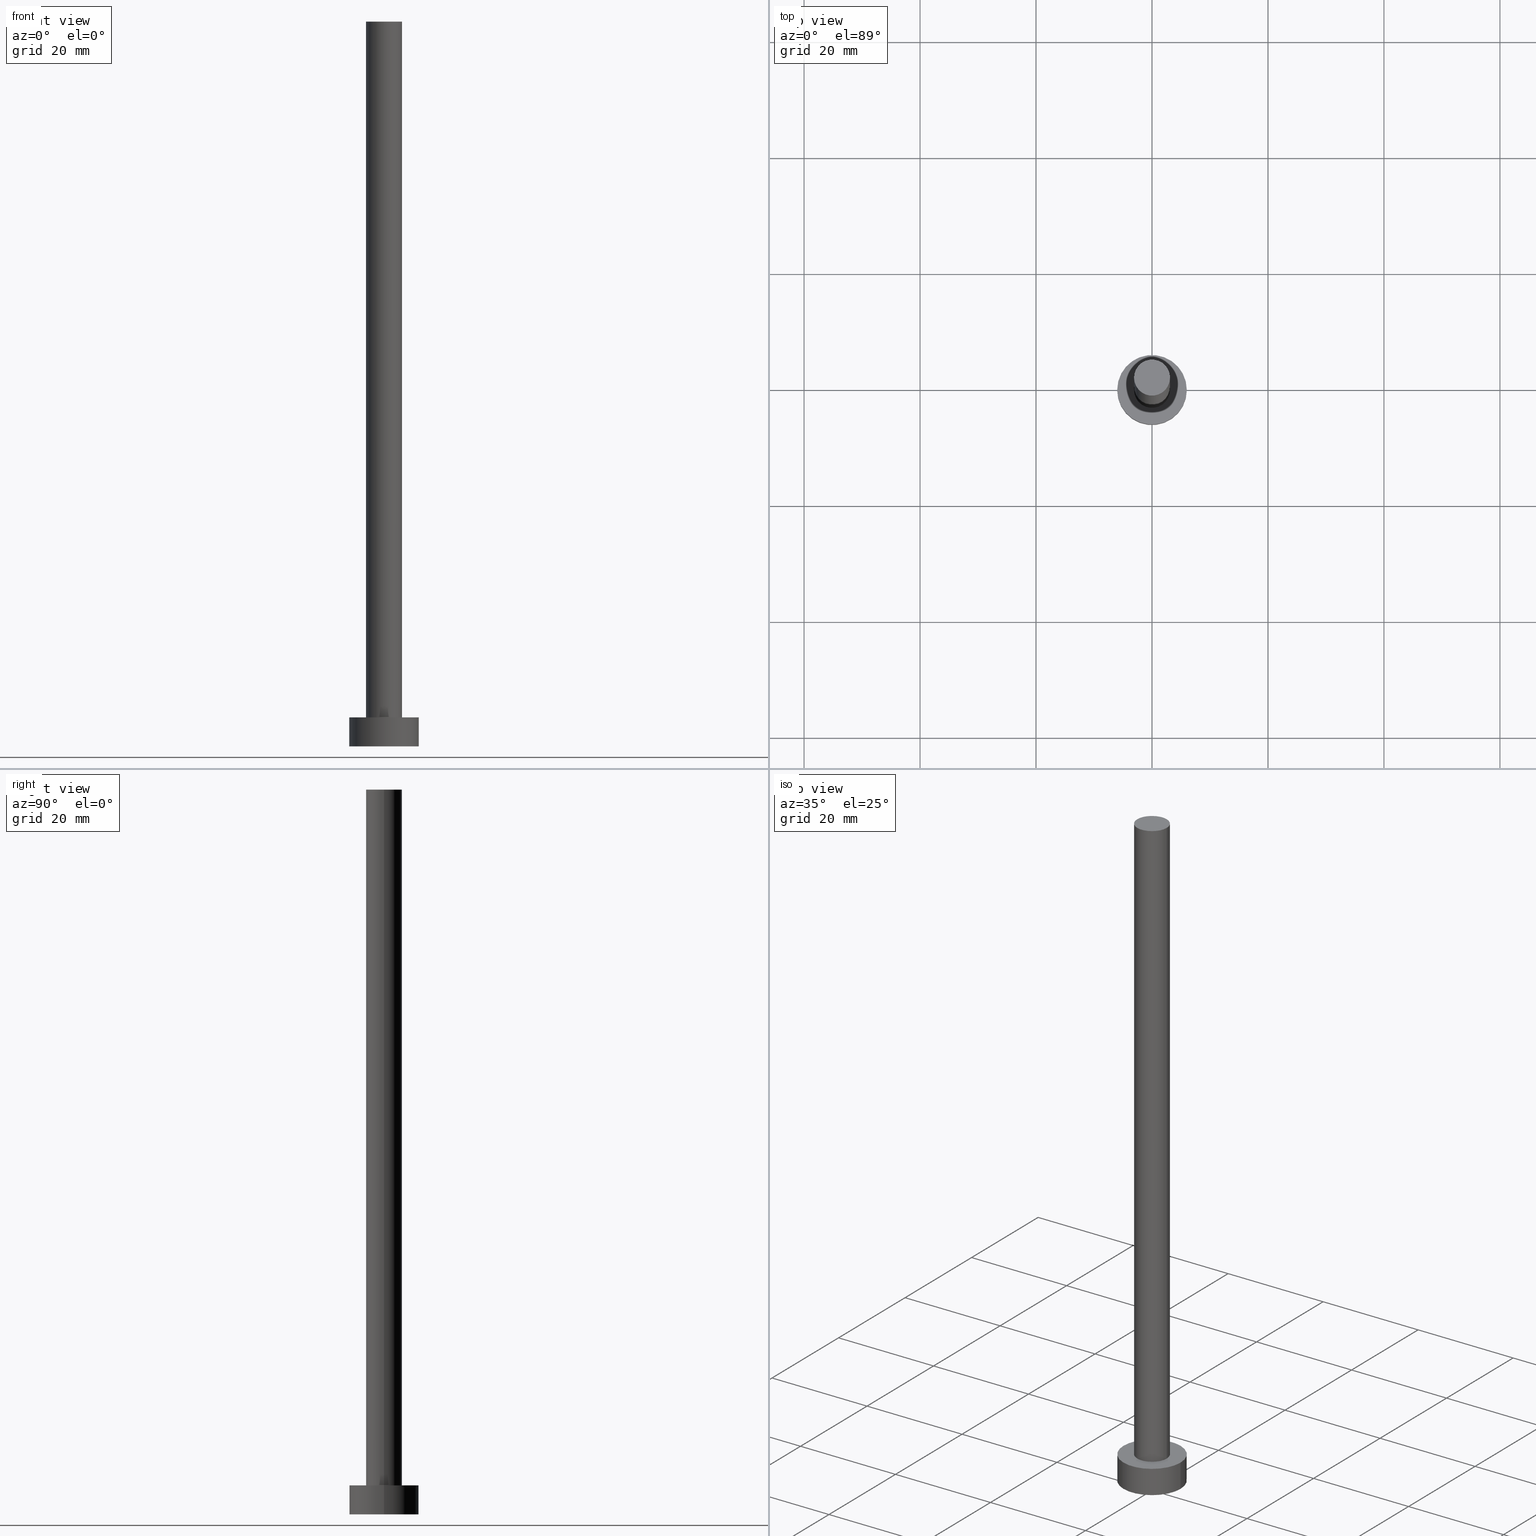
[diagram: canonical four-view strip — front | top / right | iso, engineering-drawing reading convention]
A machine part, canonical four-view strip (front | top / right | iso — engineering-drawing reading convention). The complete STEP part file that produces these views, byte-faithful:
ISO-10303-21;
HEADER;
FILE_DESCRIPTION (( 'STEP AP203' ),
    '1' );
FILE_NAME ('cd59.STEP',
    '2023-02-13T15:20:59',
    ( '' ),
    ( '' ),
    'SwSTEP 2.0',
    'SolidWorks 2019',
    '' );
FILE_SCHEMA (( 'CONFIG_CONTROL_DESIGN' ));
ENDSEC;

DATA;
#1 = CARTESIAN_POINT ( 'NONE',  ( 6.000000000000000888, 7.347880794884120722E-16, 5.000000000000000000 ) ) ;
#2 = ADVANCED_FACE ( 'NONE', ( #131 ), #110, .T. ) ;
#3 = DIRECTION ( 'NONE',  ( 1.000000000000000000, 0.000000000000000000, 0.000000000000000000 ) ) ;
#4 = CARTESIAN_POINT ( 'NONE',  ( -3.100000000000000089, 0.000000000000000000, 125.0000000000000000 ) ) ;
#5 = DIRECTION ( 'NONE',  ( -0.000000000000000000, -0.000000000000000000, -1.000000000000000000 ) ) ;
#6 = APPLICATION_PROTOCOL_DEFINITION ( 'international standard', 'config_control_design', 1994, #84 ) ;
#7 = CYLINDRICAL_SURFACE ( 'NONE', #59, 6.000000000000000888 ) ;
#8 = ADVANCED_FACE ( 'NONE', ( #232, #240 ), #60, .T. ) ;
#9 = LOCAL_TIME ( 16, 20, 59.00000000000000000, #98 ) ;
#10 = CARTESIAN_POINT ( 'NONE',  ( 0.000000000000000000, 0.000000000000000000, 5.000000000000000000 ) ) ;
#11 = AXIS2_PLACEMENT_3D ( 'NONE', #147, #217, #44 ) ;
#12 = PRODUCT ( 'cd59', 'cd59', '', ( #51 ) ) ;
#13 = PERSON_AND_ORGANIZATION ( #149, #203 ) ;
#14 = ORIENTED_EDGE ( 'NONE', *, *, #157, .T. ) ;
#15 = DIRECTION ( 'NONE',  ( -0.000000000000000000, -0.000000000000000000, -1.000000000000000000 ) ) ;
#16 = AXIS2_PLACEMENT_3D ( 'NONE', #182, #145, #3 ) ;
#17 = CC_DESIGN_APPROVAL ( #198, ( #116 ) ) ;
#18 = COORDINATED_UNIVERSAL_TIME_OFFSET ( 1, 0, .AHEAD. ) ;
#19 = ADVANCED_FACE ( 'NONE', ( #202 ), #7, .T. ) ;
#20 = ORIENTED_EDGE ( 'NONE', *, *, #143, .T. ) ;
#21 = APPROVAL_DATE_TIME ( #135, #198 ) ;
#22 = EDGE_CURVE ( 'NONE', #152, #255, #236, .T. ) ;
#23 = APPROVAL ( #212, 'NEUR�EN�' ) ;
#24 = AXIS2_PLACEMENT_3D ( 'NONE', #29, #219, #64 ) ;
#25 = ORIENTED_EDGE ( 'NONE', *, *, #38, .F. ) ;
#26 = DIRECTION ( 'NONE',  ( 0.000000000000000000, 0.000000000000000000, 1.000000000000000000 ) ) ;
#27 =( NAMED_UNIT ( * ) PLANE_ANGLE_UNIT ( ) SI_UNIT ( $, .RADIAN. ) );
#28 = VERTEX_POINT ( 'NONE', #125 ) ;
#29 = CARTESIAN_POINT ( 'NONE',  ( 0.000000000000000000, 0.000000000000000000, 0.000000000000000000 ) ) ;
#30 = DIRECTION ( 'NONE',  ( -1.000000000000000000, 0.000000000000000000, 0.000000000000000000 ) ) ;
#31 = CARTESIAN_POINT ( 'NONE',  ( 0.000000000000000000, 0.000000000000000000, 125.0000000000000000 ) ) ;
#32 = CIRCLE ( 'NONE', #97, 3.100000000000000089 ) ;
#33 = APPROVAL_PERSON_ORGANIZATION ( #37, #82, #69 ) ;
#34 =( NAMED_UNIT ( * ) SI_UNIT ( $, .STERADIAN. ) SOLID_ANGLE_UNIT ( ) );
#35 = VECTOR ( 'NONE', #15, 1000.000000000000000 ) ;
#36 = ORIENTED_EDGE ( 'NONE', *, *, #78, .F. ) ;
#37 = PERSON_AND_ORGANIZATION ( #149, #203 ) ;
#38 = EDGE_CURVE ( 'NONE', #138, #28, #136, .T. ) ;
#39 = ADVANCED_FACE ( 'NONE', ( #165 ), #87, .T. ) ;
#40 = DIRECTION ( 'NONE',  ( 1.000000000000000000, 0.000000000000000000, -0.000000000000000000 ) ) ;
#41 = EDGE_LOOP ( 'NONE', ( #71, #206, #228, #121 ) ) ;
#42 = ORIENTED_EDGE ( 'NONE', *, *, #157, .F. ) ;
#43 = DATE_TIME_ROLE ( 'classification_date' ) ;
#44 = DIRECTION ( 'NONE',  ( 1.000000000000000000, 0.000000000000000000, 0.000000000000000000 ) ) ;
#45 = DIRECTION ( 'NONE',  ( -0.000000000000000000, -0.000000000000000000, -1.000000000000000000 ) ) ;
#46 = CARTESIAN_POINT ( 'NONE',  ( 3.100000000000000089, 3.796405077356794918E-16, 5.000000000000000000 ) ) ;
#47 = DIRECTION ( 'NONE',  ( 1.000000000000000000, 0.000000000000000000, 0.000000000000000000 ) ) ;
#48 = VECTOR ( 'NONE', #63, 1000.000000000000000 ) ;
#49 = LOCAL_TIME ( 16, 20, 59.00000000000000000, #119 ) ;
#50 = CARTESIAN_POINT ( 'NONE',  ( 0.000000000000000000, 0.000000000000000000, 5.000000000000000000 ) ) ;
#51 = MECHANICAL_CONTEXT ( 'NONE', #72, 'mechanical' ) ;
#52 = CYLINDRICAL_SURFACE ( 'NONE', #127, 6.000000000000000888 ) ;
#53 = APPROVAL_ROLE ( '' ) ;
#54 = EDGE_CURVE ( 'NONE', #183, #162, #201, .T. ) ;
#55 = COORDINATED_UNIVERSAL_TIME_OFFSET ( 1, 0, .AHEAD. ) ;
#56 = ORIENTED_EDGE ( 'NONE', *, *, #88, .F. ) ;
#57 = SECURITY_CLASSIFICATION_LEVEL ( 'unclassified' ) ;
#58 = AXIS2_PLACEMENT_3D ( 'NONE', #199, #126, #47 ) ;
#59 = AXIS2_PLACEMENT_3D ( 'NONE', #220, #234, #123 ) ;
#60 = PLANE ( 'NONE',  #101 ) ;
#61 = CIRCLE ( 'NONE', #148, 6.000000000000000888 ) ;
#62 = ORIENTED_EDGE ( 'NONE', *, *, #91, .T. ) ;
#63 = DIRECTION ( 'NONE',  ( -0.000000000000000000, -0.000000000000000000, -1.000000000000000000 ) ) ;
#64 = DIRECTION ( 'NONE',  ( 1.000000000000000000, 0.000000000000000000, 0.000000000000000000 ) ) ;
#65 = CARTESIAN_POINT ( 'NONE',  ( 0.000000000000000000, 0.000000000000000000, 5.000000000000000000 ) ) ;
#66 = DIRECTION ( 'NONE',  ( 0.000000000000000000, 0.000000000000000000, 1.000000000000000000 ) ) ;
#67 = DIRECTION ( 'NONE',  ( -0.000000000000000000, -0.000000000000000000, -1.000000000000000000 ) ) ;
#68 = APPROVAL_PERSON_ORGANIZATION ( #167, #198, #53 ) ;
#69 = APPROVAL_ROLE ( '' ) ;
#70 = PRODUCT_DEFINITION_SHAPE ( 'NONE', 'NONE',  #116 ) ;
#71 = ORIENTED_EDGE ( 'NONE', *, *, #22, .F. ) ;
#72 = APPLICATION_CONTEXT ( 'configuration controlled 3d designs of mechanical parts and assemblies' ) ;
#73 = FACE_OUTER_BOUND ( 'NONE', #41, .T. ) ;
#74 = PERSON_AND_ORGANIZATION_ROLE ( 'classification_officer' ) ;
#75 = PERSON_AND_ORGANIZATION_ROLE ( 'creator' ) ;
#76 = SHAPE_DEFINITION_REPRESENTATION ( #70, #207 ) ;
#77 = CIRCLE ( 'NONE', #221, 3.100000000000000089 ) ;
#78 = EDGE_CURVE ( 'NONE', #194, #118, #32, .T. ) ;
#79 = CC_DESIGN_APPROVAL ( #82, ( #218 ) ) ;
#80 = DIRECTION ( 'NONE',  ( 0.000000000000000000, 0.000000000000000000, 1.000000000000000000 ) ) ;
#81 = EDGE_LOOP ( 'NONE', ( #56, #103 ) ) ;
#82 = APPROVAL ( #94, 'NEUR�EN�' ) ;
#83 = CARTESIAN_POINT ( 'NONE',  ( -6.000000000000000888, 0.000000000000000000, 5.000000000000000000 ) ) ;
#84 = APPLICATION_CONTEXT ( 'configuration controlled 3d designs of mechanical parts and assemblies' ) ;
#85 = ORIENTED_EDGE ( 'NONE', *, *, #129, .T. ) ;
#86 = MANIFOLD_SOLID_BREP ( 'P�idat vysunut�m3', #141 ) ;
#87 = PLANE ( 'NONE',  #252 ) ;
#88 = EDGE_CURVE ( 'NONE', #162, #183, #90, .T. ) ;
#89 = LINE ( 'NONE', #242, #205 ) ;
#90 = CIRCLE ( 'NONE', #11, 6.000000000000000888 ) ;
#91 = EDGE_CURVE ( 'NONE', #28, #183, #144, .T. ) ;
#92 = DATE_TIME_ROLE ( 'creation_date' ) ;
#93 = DIRECTION ( 'NONE',  ( 0.000000000000000000, 0.000000000000000000, 1.000000000000000000 ) ) ;
#94 = APPROVAL_STATUS ( 'not_yet_approved' ) ;
#95 = EDGE_LOOP ( 'NONE', ( #249, #213, #85, #204 ) ) ;
#96 = ORIENTED_EDGE ( 'NONE', *, *, #22, .T. ) ;
#97 = AXIS2_PLACEMENT_3D ( 'NONE', #50, #105, #166 ) ;
#98 = COORDINATED_UNIVERSAL_TIME_OFFSET ( 1, 0, .AHEAD. ) ;
#99 = CALENDAR_DATE ( 2023, 13, 2 ) ;
#100 =( LENGTH_UNIT ( ) NAMED_UNIT ( * ) SI_UNIT ( .MILLI., .METRE. ) );
#101 = AXIS2_PLACEMENT_3D ( 'NONE', #65, #80, #186 ) ;
#102 = CC_DESIGN_PERSON_AND_ORGANIZATION_ASSIGNMENT ( #250, #210, ( #115 ) ) ;
#103 = ORIENTED_EDGE ( 'NONE', *, *, #54, .F. ) ;
#104 = EDGE_LOOP ( 'NONE', ( #158, #96 ) ) ;
#105 = DIRECTION ( 'NONE',  ( 0.000000000000000000, 0.000000000000000000, 1.000000000000000000 ) ) ;
#106 = LINE ( 'NONE', #4, #48 ) ;
#107 = DIRECTION ( 'NONE',  ( 1.000000000000000000, 0.000000000000000000, -0.000000000000000000 ) ) ;
#108 = PERSON_AND_ORGANIZATION ( #149, #203 ) ;
#109 = EDGE_CURVE ( 'NONE', #255, #152, #77, .T. ) ;
#110 = CYLINDRICAL_SURFACE ( 'NONE', #229, 3.100000000000000089 ) ;
#111 = DIRECTION ( 'NONE',  ( -0.000000000000000000, -0.000000000000000000, -1.000000000000000000 ) ) ;
#112 = DIRECTION ( 'NONE',  ( 1.000000000000000000, 0.000000000000000000, 0.000000000000000000 ) ) ;
#113 = ORIENTED_EDGE ( 'NONE', *, *, #114, .F. ) ;
#114 = EDGE_CURVE ( 'NONE', #118, #194, #128, .T. ) ;
#115 = PRODUCT_DEFINITION_FORMATION_WITH_SPECIFIED_SOURCE ( 'LIBOVOLN�', '', #12, .NOT_KNOWN. ) ;
#116 = PRODUCT_DEFINITION ( 'NEZN�M�', '', #115, #142 ) ;
#117 = CALENDAR_DATE ( 2023, 13, 2 ) ;
#118 = VERTEX_POINT ( 'NONE', #46 ) ;
#119 = COORDINATED_UNIVERSAL_TIME_OFFSET ( 1, 0, .AHEAD. ) ;
#120 = CALENDAR_DATE ( 2023, 13, 2 ) ;
#121 = ORIENTED_EDGE ( 'NONE', *, *, #129, .F. ) ;
#122 = LOCAL_TIME ( 16, 20, 59.00000000000000000, #215 ) ;
#123 = DIRECTION ( 'NONE',  ( -1.000000000000000000, 0.000000000000000000, 0.000000000000000000 ) ) ;
#124 = CARTESIAN_POINT ( 'NONE',  ( 0.000000000000000000, 0.000000000000000000, 125.0000000000000000 ) ) ;
#125 = CARTESIAN_POINT ( 'NONE',  ( 6.000000000000000888, 7.347880794884120722E-16, 5.000000000000000000 ) ) ;
#126 = DIRECTION ( 'NONE',  ( 0.000000000000000000, 0.000000000000000000, 1.000000000000000000 ) ) ;
#127 = AXIS2_PLACEMENT_3D ( 'NONE', #173, #245, #168 ) ;
#128 = CIRCLE ( 'NONE', #16, 3.100000000000000089 ) ;
#129 = EDGE_CURVE ( 'NONE', #255, #194, #106, .T. ) ;
#130 = AXIS2_PLACEMENT_3D ( 'NONE', #170, #66, #235 ) ;
#131 = FACE_OUTER_BOUND ( 'NONE', #95, .T. ) ;
#132 = CYLINDRICAL_SURFACE ( 'NONE', #223, 3.100000000000000089 ) ;
#133 = CC_DESIGN_PERSON_AND_ORGANIZATION_ASSIGNMENT ( #140, #74, ( #218 ) ) ;
#134 = FACE_OUTER_BOUND ( 'NONE', #254, .T. ) ;
#135 = DATE_AND_TIME ( #120, #122 ) ;
#136 = CIRCLE ( 'NONE', #193, 6.000000000000000888 ) ;
#137 = CC_DESIGN_DATE_AND_TIME_ASSIGNMENT ( #153, #92, ( #116 ) ) ;
#138 = VERTEX_POINT ( 'NONE', #83 ) ;
#139 = CC_DESIGN_PERSON_AND_ORGANIZATION_ASSIGNMENT ( #13, #75, ( #116 ) ) ;
#140 = PERSON_AND_ORGANIZATION ( #149, #203 ) ;
#141 = CLOSED_SHELL ( 'NONE', ( #230, #19, #216, #8, #169, #2, #39 ) ) ;
#142 = DESIGN_CONTEXT ( 'detailed design', #84, 'design' ) ;
#143 = EDGE_CURVE ( 'NONE', #138, #162, #146, .T. ) ;
#144 = LINE ( 'NONE', #1, #189 ) ;
#145 = DIRECTION ( 'NONE',  ( 0.000000000000000000, 0.000000000000000000, 1.000000000000000000 ) ) ;
#146 = LINE ( 'NONE', #184, #35 ) ;
#147 = CARTESIAN_POINT ( 'NONE',  ( 0.000000000000000000, 0.000000000000000000, 0.000000000000000000 ) ) ;
#148 = AXIS2_PLACEMENT_3D ( 'NONE', #10, #226, #112 ) ;
#149 = PERSON ( 'NEUR�EN�', 'NEUR�EN�', 'NEUR�EN�', ('NEUR�EN�'), ('NEUR�EN�'), ('NEUR�EN�') ) ;
#150 = CARTESIAN_POINT ( 'NONE',  ( -3.100000000000000089, 0.000000000000000000, 5.000000000000000000 ) ) ;
#151 = CC_DESIGN_PERSON_AND_ORGANIZATION_ASSIGNMENT ( #108, #185, ( #12 ) ) ;
#152 = VERTEX_POINT ( 'NONE', #243 ) ;
#153 = DATE_AND_TIME ( #117, #159 ) ;
#154 = PRODUCT_RELATED_PRODUCT_CATEGORY ( 'detail', '', ( #12 ) ) ;
#155 = CALENDAR_DATE ( 2023, 13, 2 ) ;
#156 = CC_DESIGN_PERSON_AND_ORGANIZATION_ASSIGNMENT ( #171, #244, ( #115 ) ) ;
#157 = EDGE_CURVE ( 'NONE', #28, #138, #61, .T. ) ;
#158 = ORIENTED_EDGE ( 'NONE', *, *, #109, .T. ) ;
#159 = LOCAL_TIME ( 16, 20, 59.00000000000000000, #55 ) ;
#160 = ORIENTED_EDGE ( 'NONE', *, *, #91, .F. ) ;
#161 = ORIENTED_EDGE ( 'NONE', *, *, #88, .T. ) ;
#162 = VERTEX_POINT ( 'NONE', #209 ) ;
#163 = EDGE_LOOP ( 'NONE', ( #36, #113 ) ) ;
#164 = APPLICATION_PROTOCOL_DEFINITION ( 'international standard', 'config_control_design', 1994, #72 ) ;
#165 = FACE_OUTER_BOUND ( 'NONE', #104, .T. ) ;
#166 = DIRECTION ( 'NONE',  ( 1.000000000000000000, 0.000000000000000000, 0.000000000000000000 ) ) ;
#167 = PERSON_AND_ORGANIZATION ( #149, #203 ) ;
#168 = DIRECTION ( 'NONE',  ( -1.000000000000000000, 0.000000000000000000, 0.000000000000000000 ) ) ;
#169 = ADVANCED_FACE ( 'NONE', ( #225 ), #211, .F. ) ;
#170 = CARTESIAN_POINT ( 'NONE',  ( 0.000000000000000000, 0.000000000000000000, 0.000000000000000000 ) ) ;
#171 = PERSON_AND_ORGANIZATION ( #149, #203 ) ;
#172 = CC_DESIGN_APPROVAL ( #23, ( #115 ) ) ;
#173 = CARTESIAN_POINT ( 'NONE',  ( 0.000000000000000000, 0.000000000000000000, 5.000000000000000000 ) ) ;
#174 = ORIENTED_EDGE ( 'NONE', *, *, #54, .T. ) ;
#175 = ORIENTED_EDGE ( 'NONE', *, *, #38, .T. ) ;
#176 = APPROVAL_PERSON_ORGANIZATION ( #227, #23, #231 ) ;
#177 = DATE_AND_TIME ( #195, #49 ) ;
#178 = EDGE_LOOP ( 'NONE', ( #175, #14 ) ) ;
#179 = AXIS2_PLACEMENT_3D ( 'NONE', #248, #93, #40 ) ;
#180 = ORIENTED_EDGE ( 'NONE', *, *, #143, .F. ) ;
#181 = DIRECTION ( 'NONE',  ( 1.000000000000000000, 0.000000000000000000, 0.000000000000000000 ) ) ;
#182 = CARTESIAN_POINT ( 'NONE',  ( 0.000000000000000000, 0.000000000000000000, 5.000000000000000000 ) ) ;
#183 = VERTEX_POINT ( 'NONE', #192 ) ;
#184 = CARTESIAN_POINT ( 'NONE',  ( -6.000000000000000888, 0.000000000000000000, 5.000000000000000000 ) ) ;
#185 = PERSON_AND_ORGANIZATION_ROLE ( 'design_owner' ) ;
#186 = DIRECTION ( 'NONE',  ( 1.000000000000000000, 0.000000000000000000, -0.000000000000000000 ) ) ;
#187 = DIRECTION ( 'NONE',  ( -1.000000000000000000, 0.000000000000000000, 0.000000000000000000 ) ) ;
#188 = CARTESIAN_POINT ( 'NONE',  ( -3.100000000000000089, 0.000000000000000000, 125.0000000000000000 ) ) ;
#189 = VECTOR ( 'NONE', #45, 1000.000000000000000 ) ;
#190 = APPROVAL_DATE_TIME ( #251, #82 ) ;
#191 =( GEOMETRIC_REPRESENTATION_CONTEXT ( 3 ) GLOBAL_UNCERTAINTY_ASSIGNED_CONTEXT ( ( #253 ) ) GLOBAL_UNIT_ASSIGNED_CONTEXT ( ( #100, #27, #34 ) ) REPRESENTATION_CONTEXT ( 'NONE', 'WORKASPACE' ) );
#192 = CARTESIAN_POINT ( 'NONE',  ( 6.000000000000000888, 7.347880794884120722E-16, 0.000000000000000000 ) ) ;
#193 = AXIS2_PLACEMENT_3D ( 'NONE', #233, #26, #181 ) ;
#194 = VERTEX_POINT ( 'NONE', #150 ) ;
#195 = CALENDAR_DATE ( 2023, 13, 2 ) ;
#196 = CC_DESIGN_SECURITY_CLASSIFICATION ( #218, ( #115 ) ) ;
#197 = CC_DESIGN_DATE_AND_TIME_ASSIGNMENT ( #214, #43, ( #218 ) ) ;
#198 = APPROVAL ( #241, 'NEUR�EN�' ) ;
#199 = CARTESIAN_POINT ( 'NONE',  ( 0.000000000000000000, 0.000000000000000000, 125.0000000000000000 ) ) ;
#200 = DIRECTION ( 'NONE',  ( 0.000000000000000000, 0.000000000000000000, 1.000000000000000000 ) ) ;
#201 = CIRCLE ( 'NONE', #24, 6.000000000000000888 ) ;
#202 = FACE_OUTER_BOUND ( 'NONE', #247, .T. ) ;
#203 = ORGANIZATION ( 'NEUR�EN�', 'NEUR�EN�', '' ) ;
#204 = ORIENTED_EDGE ( 'NONE', *, *, #78, .T. ) ;
#205 = VECTOR ( 'NONE', #67, 1000.000000000000000 ) ;
#206 = ORIENTED_EDGE ( 'NONE', *, *, #238, .T. ) ;
#207 = ADVANCED_BREP_SHAPE_REPRESENTATION ( 'cd59', ( #86, #130 ), #191 ) ;
#208 = CARTESIAN_POINT ( 'NONE',  ( 0.000000000000000000, 0.000000000000000000, 125.0000000000000000 ) ) ;
#209 = CARTESIAN_POINT ( 'NONE',  ( -6.000000000000000888, 0.000000000000000000, 0.000000000000000000 ) ) ;
#210 = PERSON_AND_ORGANIZATION_ROLE ( 'design_supplier' ) ;
#211 = PLANE ( 'NONE',  #179 ) ;
#212 = APPROVAL_STATUS ( 'not_yet_approved' ) ;
#213 = ORIENTED_EDGE ( 'NONE', *, *, #109, .F. ) ;
#214 = DATE_AND_TIME ( #155, #9 ) ;
#215 = COORDINATED_UNIVERSAL_TIME_OFFSET ( 1, 0, .AHEAD. ) ;
#216 = ADVANCED_FACE ( 'NONE', ( #134 ), #52, .T. ) ;
#217 = DIRECTION ( 'NONE',  ( 0.000000000000000000, 0.000000000000000000, 1.000000000000000000 ) ) ;
#218 = SECURITY_CLASSIFICATION ( '', '', #57 ) ;
#219 = DIRECTION ( 'NONE',  ( 0.000000000000000000, 0.000000000000000000, 1.000000000000000000 ) ) ;
#220 = CARTESIAN_POINT ( 'NONE',  ( 0.000000000000000000, 0.000000000000000000, 5.000000000000000000 ) ) ;
#221 = AXIS2_PLACEMENT_3D ( 'NONE', #124, #200, #222 ) ;
#222 = DIRECTION ( 'NONE',  ( 1.000000000000000000, 0.000000000000000000, 0.000000000000000000 ) ) ;
#223 = AXIS2_PLACEMENT_3D ( 'NONE', #208, #111, #187 ) ;
#224 = DIRECTION ( 'NONE',  ( 0.000000000000000000, 0.000000000000000000, 1.000000000000000000 ) ) ;
#225 = FACE_OUTER_BOUND ( 'NONE', #81, .T. ) ;
#226 = DIRECTION ( 'NONE',  ( 0.000000000000000000, 0.000000000000000000, 1.000000000000000000 ) ) ;
#227 = PERSON_AND_ORGANIZATION ( #149, #203 ) ;
#228 = ORIENTED_EDGE ( 'NONE', *, *, #114, .T. ) ;
#229 = AXIS2_PLACEMENT_3D ( 'NONE', #31, #5, #30 ) ;
#230 = ADVANCED_FACE ( 'NONE', ( #73 ), #132, .T. ) ;
#231 = APPROVAL_ROLE ( '' ) ;
#232 = FACE_BOUND ( 'NONE', #163, .T. ) ;
#233 = CARTESIAN_POINT ( 'NONE',  ( 0.000000000000000000, 0.000000000000000000, 5.000000000000000000 ) ) ;
#234 = DIRECTION ( 'NONE',  ( -0.000000000000000000, -0.000000000000000000, -1.000000000000000000 ) ) ;
#235 = DIRECTION ( 'NONE',  ( 1.000000000000000000, 0.000000000000000000, 0.000000000000000000 ) ) ;
#236 = CIRCLE ( 'NONE', #58, 3.100000000000000089 ) ;
#237 = CARTESIAN_POINT ( 'NONE',  ( 0.000000000000000000, 0.000000000000000000, 125.0000000000000000 ) ) ;
#238 = EDGE_CURVE ( 'NONE', #152, #118, #89, .T. ) ;
#239 = LOCAL_TIME ( 16, 20, 59.00000000000000000, #18 ) ;
#240 = FACE_OUTER_BOUND ( 'NONE', #178, .T. ) ;
#241 = APPROVAL_STATUS ( 'not_yet_approved' ) ;
#242 = CARTESIAN_POINT ( 'NONE',  ( 3.100000000000000089, 3.796405077356794918E-16, 125.0000000000000000 ) ) ;
#243 = CARTESIAN_POINT ( 'NONE',  ( 3.100000000000000089, 3.796405077356794918E-16, 125.0000000000000000 ) ) ;
#244 = PERSON_AND_ORGANIZATION_ROLE ( 'creator' ) ;
#245 = DIRECTION ( 'NONE',  ( -0.000000000000000000, -0.000000000000000000, -1.000000000000000000 ) ) ;
#246 = APPROVAL_DATE_TIME ( #177, #23 ) ;
#247 = EDGE_LOOP ( 'NONE', ( #42, #62, #174, #180 ) ) ;
#248 = CARTESIAN_POINT ( 'NONE',  ( 0.000000000000000000, 0.000000000000000000, 0.000000000000000000 ) ) ;
#249 = ORIENTED_EDGE ( 'NONE', *, *, #238, .F. ) ;
#250 = PERSON_AND_ORGANIZATION ( #149, #203 ) ;
#251 = DATE_AND_TIME ( #99, #239 ) ;
#252 = AXIS2_PLACEMENT_3D ( 'NONE', #237, #224, #107 ) ;
#253 = UNCERTAINTY_MEASURE_WITH_UNIT (LENGTH_MEASURE( 1.000000000000000082E-05 ), #100, 'distance_accuracy_value', 'NONE');
#254 = EDGE_LOOP ( 'NONE', ( #160, #25, #20, #161 ) ) ;
#255 = VERTEX_POINT ( 'NONE', #188 ) ;
ENDSEC;
END-ISO-10303-21;
